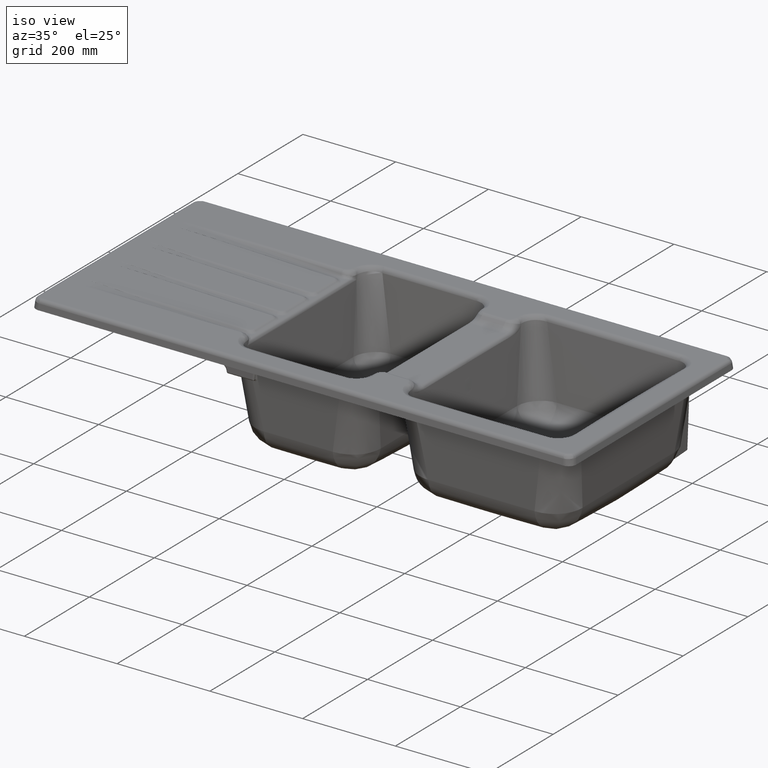
[diagram: clean part render]
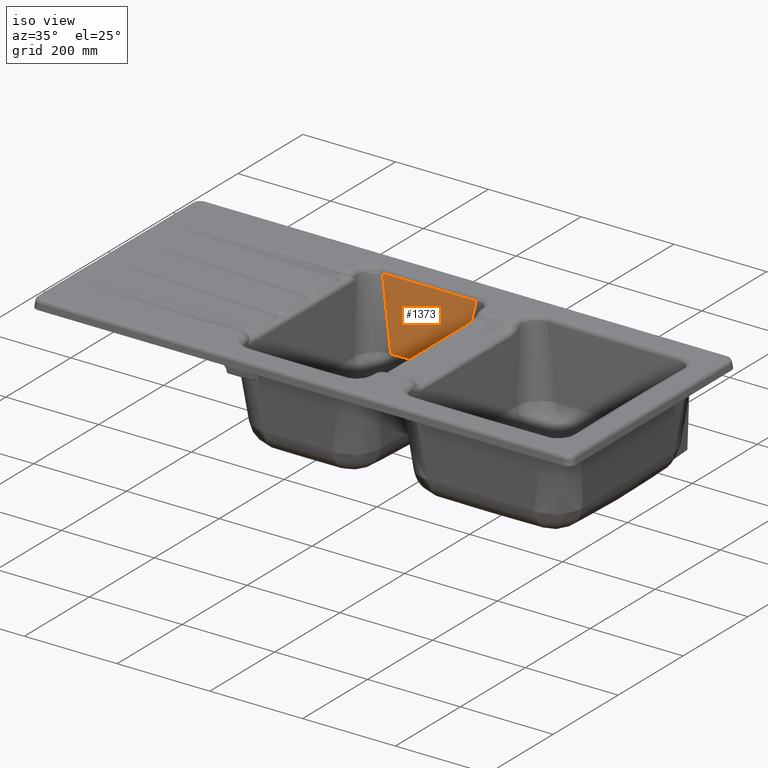
[diagram: same view with one face highlighted and labeled with its STEP entity id]
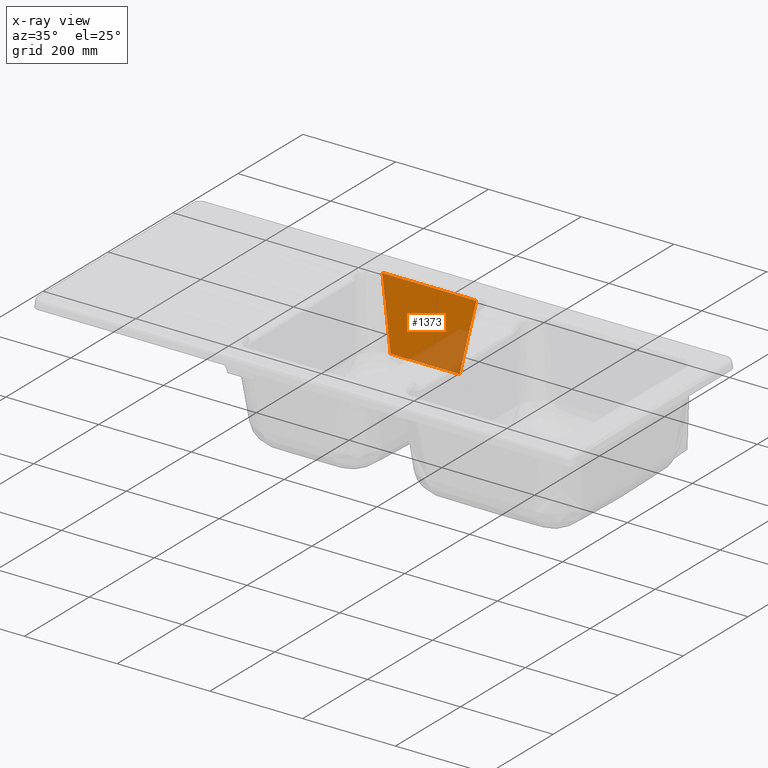
[diagram: x-ray of the same camera — body ghosted, the highlighted face saturated]
A machine part, iso view. The second image highlights one B-rep face of the part: STEP entity #1373.
The next image is the same camera in x-ray: the body ghosted, the highlighted face saturated — about 21% of this face is hidden behind the body in this view.
In plain terms, the highlighted planar face has unit normal (-0, 0.9962, -0.0872).
Its self-contained STEP definition (entity closure, byte-faithful):
#127=(
BOUNDED_CURVE()
B_SPLINE_CURVE(3,(#25745,#25746,#25747,#25748,#25749,#25750,#25751,#25752,
#25753,#25754),.UNSPECIFIED.,.F.,.F.)
B_SPLINE_CURVE_WITH_KNOTS((4,2,2,2,4),(0.,0.25,0.5,0.75,1.),
 .UNSPECIFIED.)
CURVE()
GEOMETRIC_REPRESENTATION_ITEM()
RATIONAL_B_SPLINE_CURVE((1.,1.,1.,1.,1.,1.,1.,1.,1.,1.))
REPRESENTATION_ITEM('')
);
#1165=PLANE('',#8577);
#1373=ADVANCED_FACE('',(#2002),#1165,.F.);
#2002=FACE_OUTER_BOUND('',#2527,.T.);
#2527=EDGE_LOOP('',(#3600,#3601,#3602,#3603));
#3600=ORIENTED_EDGE('',*,*,#6762,.T.);
#3601=ORIENTED_EDGE('',*,*,#6610,.T.);
#3602=ORIENTED_EDGE('',*,*,#6764,.F.);
#3603=ORIENTED_EDGE('',*,*,#6765,.F.);
#5739=VERTEX_POINT('',#21344);
#5740=VERTEX_POINT('',#21500);
#5821=VERTEX_POINT('',#25683);
#5822=VERTEX_POINT('',#25744);
#6610=EDGE_CURVE('',#5739,#5740,#7825,.T.);
#6762=EDGE_CURVE('',#5821,#5739,#7920,.T.);
#6764=EDGE_CURVE('',#5822,#5740,#7921,.T.);
#6765=EDGE_CURVE('',#5821,#5822,#127,.T.);
#7825=B_SPLINE_CURVE_WITH_KNOTS('',5,(#21501,#21502,#21503,#21504,#21505,
#21506),.UNSPECIFIED.,.F.,.F.,(6,6),(0.,1.),.UNSPECIFIED.);
#7920=B_SPLINE_CURVE_WITH_KNOTS('',3,(#25679,#25680,#25681,#25682),
 .UNSPECIFIED.,.F.,.F.,(4,4),(0.,1.),.UNSPECIFIED.);
#7921=B_SPLINE_CURVE_WITH_KNOTS('',3,(#25740,#25741,#25742,#25743),
 .UNSPECIFIED.,.F.,.F.,(4,4),(0.,1.),.UNSPECIFIED.);
#8577=AXIS2_PLACEMENT_3D('',#25755,#9231,#9232);
#9231=DIRECTION('',(-7.16850744057105E-16,0.996194698091746,-0.0871557427476572));
#9232=DIRECTION('',(0.,0.0871557427476571,0.996194698091746));
#21344=CARTESIAN_POINT('',(-242.27828101109,188.489204939723,-164.820696614541));
#21500=CARTESIAN_POINT('',(-93.7132414941885,188.488765827742,-164.825715687452));
#21501=CARTESIAN_POINT('',(-242.27828101109,188.489204939723,-164.820696614541));
#21502=CARTESIAN_POINT('',(-212.565273107711,188.489117117327,-164.821700429124));
#21503=CARTESIAN_POINT('',(-182.852265204326,188.489029294931,-164.822704243704));
#21504=CARTESIAN_POINT('',(-153.139257300954,188.488941472534,-164.82370805829));
#21505=CARTESIAN_POINT('',(-123.426249397567,188.488853650138,-164.824711872869));
#21506=CARTESIAN_POINT('',(-93.7132414941886,188.488765827742,-164.825715687452));
#25679=CARTESIAN_POINT('',(-276.836571847841,204.83534239577,22.0165094562089));
#25680=CARTESIAN_POINT('',(-260.663319334786,197.185363120504,-65.4231537751228));
#25681=CARTESIAN_POINT('',(-244.490066821731,189.535383845238,-152.862817006454));
#25682=CARTESIAN_POINT('',(-228.316814308675,181.885404569972,-240.302480237786));
#25683=CARTESIAN_POINT('',(-269.144080066209,201.196779116236,-19.5724591357794));
#25740=CARTESIAN_POINT('',(-59.1532728416285,204.835150420356,22.0143151671809));
#25741=CARTESIAN_POINT('',(-75.3261463736853,197.185606134583,-65.4203761115028));
#25742=CARTESIAN_POINT('',(-91.4990199057419,189.536061848809,-152.855067390186));
#25743=CARTESIAN_POINT('',(-107.671893437799,181.886517563035,-240.28975866887));
#25744=CARTESIAN_POINT('',(-66.8457573819512,201.196712202052,-19.5732239683966));
#25745=CARTESIAN_POINT('',(-269.144080066209,201.196779116236,-19.5724591357794));
#25746=CARTESIAN_POINT('',(-252.285886575285,201.195120891085,-19.5914127359852));
#25747=CARTESIAN_POINT('',(-235.427692978715,201.196163404771,-19.5794967500214));
#25748=CARTESIAN_POINT('',(-201.711305813895,201.19730807646,-19.566413092756));
#25749=CARTESIAN_POINT('',(-184.85311227059,201.196993999373,-19.5700030102841));
#25750=CARTESIAN_POINT('',(-151.13672515724,201.196964210334,-19.570343500557));
#25751=CARTESIAN_POINT('',(-134.278531586363,201.197276534028,-19.5667736243952));
#25752=CARTESIAN_POINT('',(-100.562144501087,201.196608045281,-19.5744144857431));
#25753=CARTESIAN_POINT('',(-83.7039510073711,201.195281062059,-19.589581973374));
#25754=CARTESIAN_POINT('',(-66.8457573819512,201.196712202052,-19.5732239683965));
#25755=CARTESIAN_POINT('',(-302.9906979,201.9937986,-10.4624847500382));